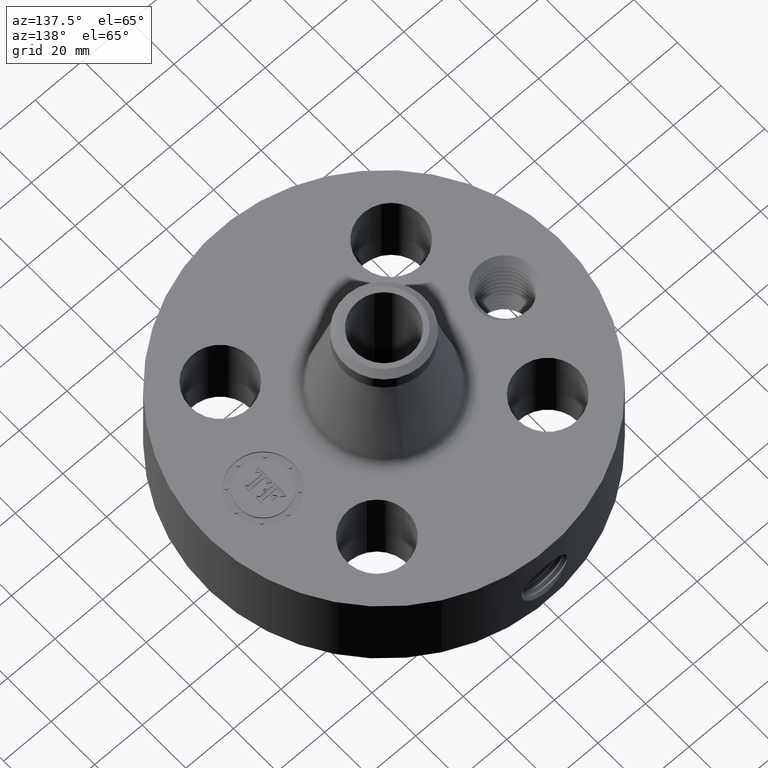
[diagram: clean part render]
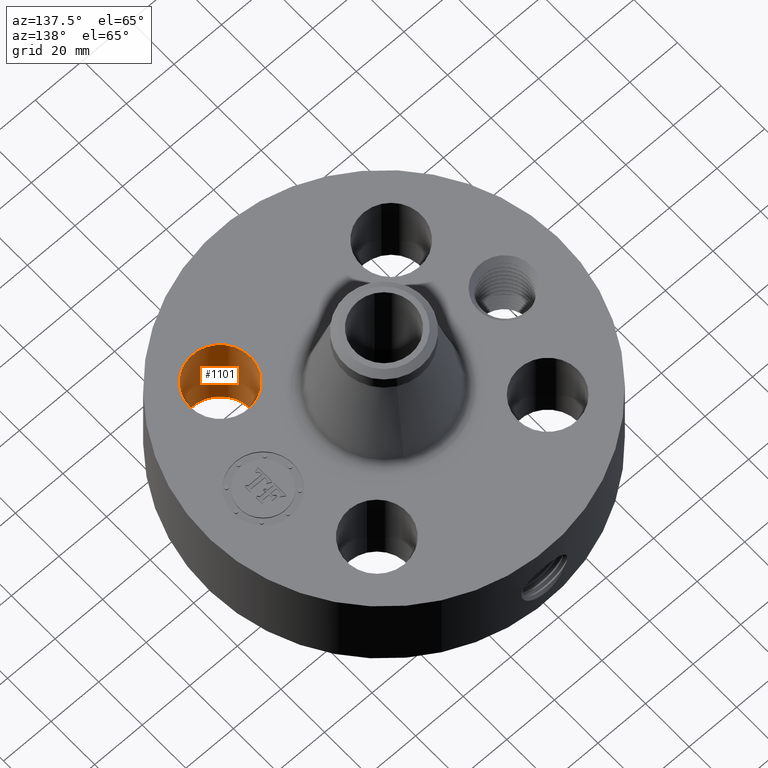
[diagram: same view with one face highlighted and labeled with its STEP entity id]
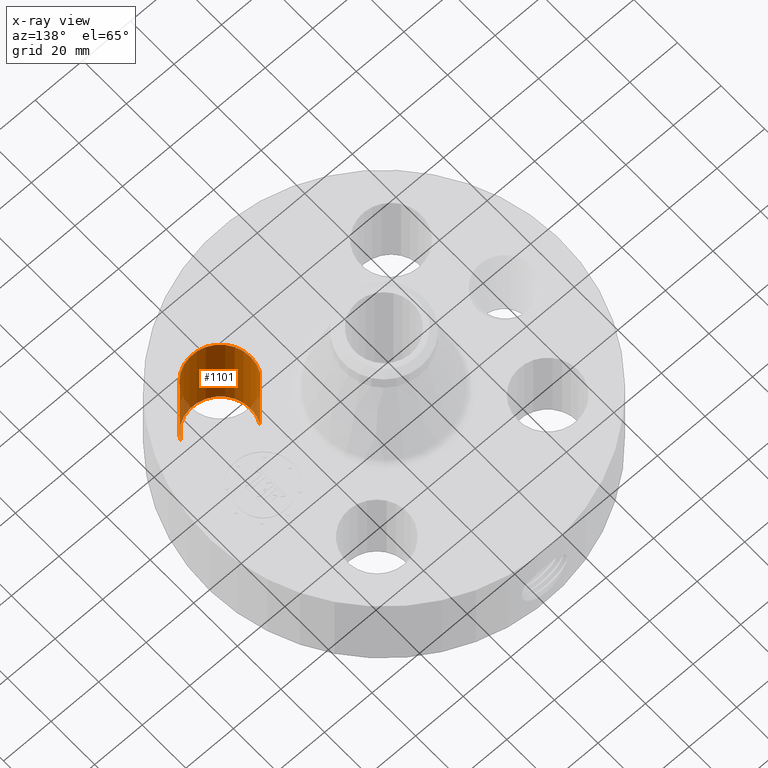
[diagram: x-ray of the same camera — body ghosted, the highlighted face saturated]
A machine part, auxiliary view. The second image highlights one B-rep face of the part: STEP entity #1101.
The next image is the same camera in x-ray: the body ghosted, the highlighted face saturated — about 7% of this face is hidden behind the body in this view.
In plain terms, the highlighted cylindrical surface (partial cylindrical patch) has radius 12.7 mm, axis along (0, -0, -1).
Its self-contained STEP definition (entity closure, byte-faithful):
#227=AXIS2_PLACEMENT_3D('Circle Axis2P3D',#225,#226,$) ;
#484=AXIS2_PLACEMENT_3D('Circle Axis2P3D',#482,#483,$) ;
#1083=AXIS2_PLACEMENT_3D('Cylinder Axis2P3D',#1080,#1081,#1082) ;
#225=CARTESIAN_POINT('Axis2P3D Location',(1.41421356238,-1.41421356238,0.250000000001)) ;
#229=CARTESIAN_POINT('Vertex',(1.85300484333,-1.65392633168,0.250000000001)) ;
#231=CARTESIAN_POINT('Vertex',(0.975422281432,-1.17450079308,0.250000000001)) ;
#477=CARTESIAN_POINT('Vertex',(0.975422281432,-1.17450079308,1.75000000001)) ;
#479=CARTESIAN_POINT('Vertex',(1.85300484333,-1.65392633168,1.75000000001)) ;
#482=CARTESIAN_POINT('Axis2P3D Location',(1.41421356238,-1.41421356238,1.75000000001)) ;
#1080=CARTESIAN_POINT('Axis2P3D Location',(1.41421356238,-1.41421356238,1.74606299213)) ;
#1085=CARTESIAN_POINT('Line Origine',(1.85300484333,-1.65392633168,1.)) ;
#1090=CARTESIAN_POINT('Line Origine',(0.975422281432,-1.17450079308,1.)) ;
#226=DIRECTION('Axis2P3D Direction',(0.,0.,-0.0393700787402)) ;
#483=DIRECTION('Axis2P3D Direction',(0.,0.,-0.0393700787402)) ;
#1081=DIRECTION('Axis2P3D Direction',(0.,-0.,-0.0393700787402)) ;
#1082=DIRECTION('Axis2P3D XDirection',(-0.0345504945626,0.0188750212049,0.)) ;
#1086=DIRECTION('Vector Direction',(0.,0.,-0.0393700787402)) ;
#1091=DIRECTION('Vector Direction',(0.,0.,-0.0393700787402)) ;
#1087=VECTOR('Line Direction',#1086,0.0393700787402) ;
#1092=VECTOR('Line Direction',#1091,0.0393700787402) ;
#1096=ORIENTED_EDGE('',*,*,#1089,.F.) ;
#1097=ORIENTED_EDGE('',*,*,#233,.T.) ;
#1098=ORIENTED_EDGE('',*,*,#1094,.T.) ;
#1099=ORIENTED_EDGE('',*,*,#486,.F.) ;
#1101=ADVANCED_FACE('PartBody',(#1100),#1084,.F.) ;
#228=CIRCLE('generated circle',#227,0.500000000002) ;
#485=CIRCLE('generated circle',#484,0.500000000002) ;
#1084=CYLINDRICAL_SURFACE('generated cylinder',#1083,0.500000000002) ;
#233=EDGE_CURVE('',#230,#232,#228,.T.) ;
#486=EDGE_CURVE('',#480,#478,#485,.T.) ;
#1089=EDGE_CURVE('',#230,#480,#1088,.F.) ;
#1094=EDGE_CURVE('',#232,#478,#1093,.F.) ;
#1095=EDGE_LOOP('',(#1096,#1097,#1098,#1099)) ;
#1100=FACE_OUTER_BOUND('',#1095,.T.) ;
#1088=LINE('Line',#1085,#1087) ;
#1093=LINE('Line',#1090,#1092) ;
#230=VERTEX_POINT('',#229) ;
#232=VERTEX_POINT('',#231) ;
#478=VERTEX_POINT('',#477) ;
#480=VERTEX_POINT('',#479) ;